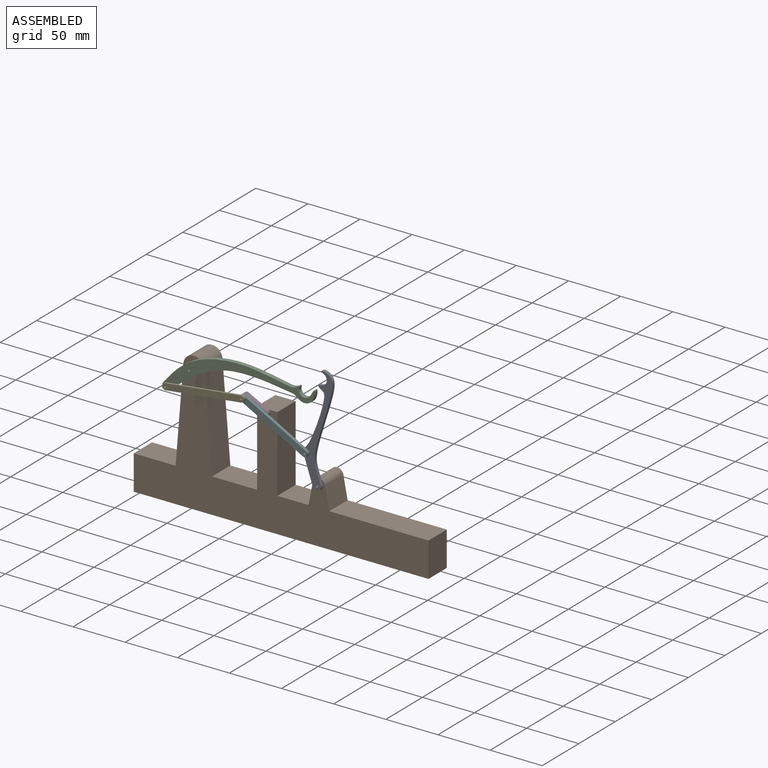
[diagram: assembled view]
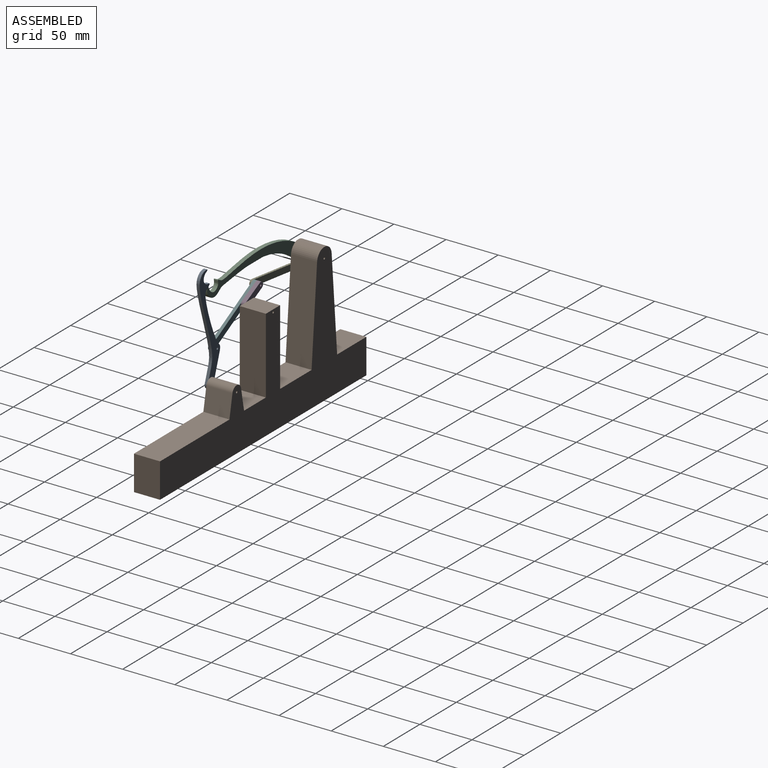
[diagram: assembled view, second angle]
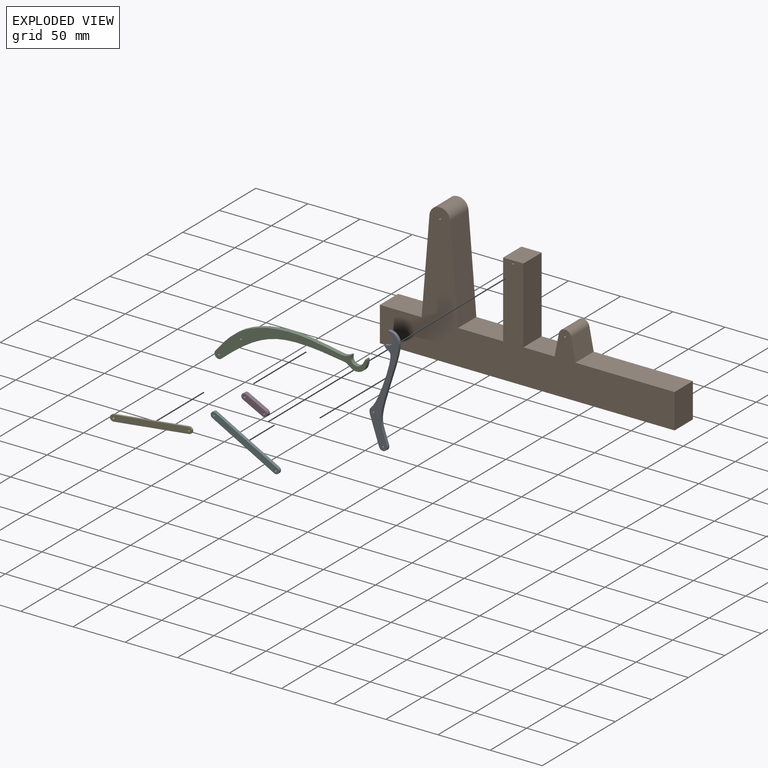
[diagram: exploded view]
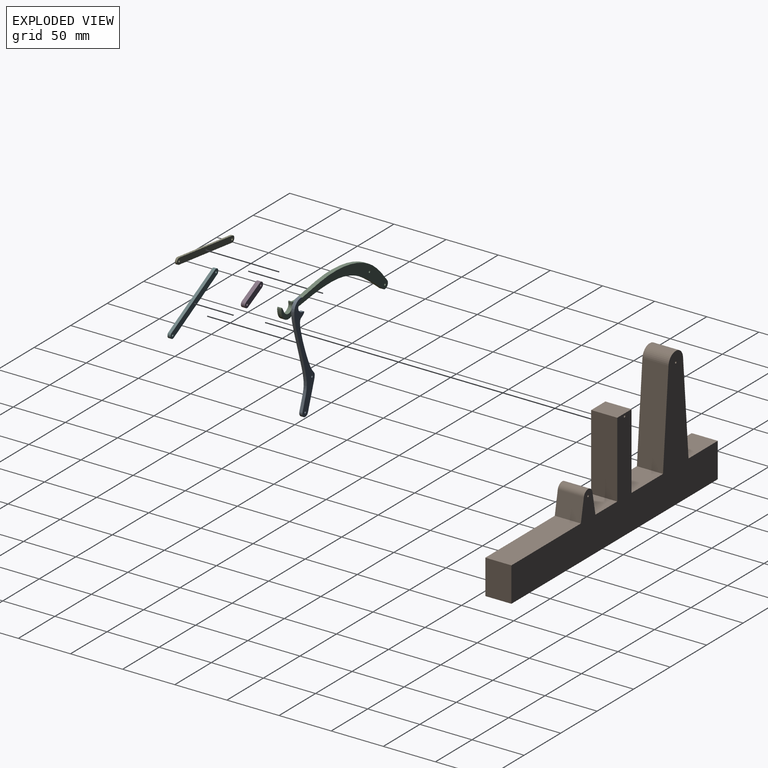
[diagram: exploded view, second angle]
ASSEMBLY  parts=6 mates=8
PART A: 10 faces, bbox 57.2x3x95.2 mm
  f0: extruded ~4.62x3.83mm, area 19.2mm2, adj f1,f5,f6,f7
  f1: extruded ~3x0.92mm, area 2.8mm2, adj f0,f2,f6,f7
  f2: plane 26.92x3mm, normal (-1,0,0.09), area 81.1mm2, adj f1,f3,f6,f7
  f3: cylinder r=4mm len=7.98mm, axis (0,1,0), area 37.7mm2, adj f2,f4,f6,f7
  f4: plane 11.29x3mm, normal (1,0,-0.09), area 34mm2, adj f3,f5,f6,f7
  f5: extruded ~79.34x49.56mm, area 540.9mm2, adj f0,f4,f6,f7
  f6: plane 95.22x57.2mm, normal (0,-1,0), area 743.2mm2, adj f0,f1,f2,f3,f4,f5,f8,f9
  f7: plane 95.22x57.2mm, normal (0,1,0), area 743.2mm2, adj f0,f1,f2,f3,f4,f5,f8,f9
  f8: cylinder r=1mm len=3mm, axis (0,1,0), area 18.8mm2, adj f6,f7
  f9: cylinder r=1mm len=3mm, axis (0,1,0), area 18.8mm2, adj f6,f7
PART B: 23 faces, bbox 282.7x25x133.1 mm
  f0: plane 90.83x25mm, normal (-1,0,0.08), area 2278.5mm2, adj f1,f17,f18,f19
  f1: plane 40.06x25mm, normal (0,0,1), area 1001.5mm2, adj f0,f2,f18,f19
  f2: plane 33.29x25mm, normal (-1,0,0), area 832.2mm2, adj f1,f3,f18,f19
  f3: plane 282.66x25mm, normal (0,0,-1), area 7066.6mm2, adj f2,f4,f18,f19
  f4: plane 33.29x25mm, normal (1,0,0), area 832.2mm2, adj f3,f5,f18,f19
  f5: plane 95.11x25mm, normal (0,0,1), area 2377.6mm2, adj f4,f6,f18,f19
  f6: plane 25x21.15mm, normal (0.98,0,0.19), area 538.5mm2, adj f5,f7,f18,f19
  f7: cylinder r=6mm len=25mm, axis (0,-1,0), area 413.6mm2, adj f6,f8,f18,f19
  f8: plane 25x21.15mm, normal (-0.98,0,0.19), area 538.5mm2, adj f7,f9,f18,f19
  f9: plane 29.87x25mm, normal (0,0,1), area 746.7mm2, adj f8,f10,f18,f19
  f10: plane 72.58x25mm, normal (1,0,0), area 1814.5mm2, adj f9,f11,f18,f19
  f11: plane 25x19.46mm, normal (0,0,1), area 486.5mm2, adj f10,f12,f18,f19
  f12: plane 72.58x25mm, normal (-1,0,0), area 1814.5mm2, adj f11,f13,f18,f19
  f13: plane 43.17x25mm, normal (0,0,1), area 1079.3mm2, adj f12,f14,f18,f19
  f14: plane 90.83x25mm, normal (1,0,0.08), area 2278.5mm2, adj f13,f15,f18,f19
  f15: cylinder r=10mm len=25mm, axis (0,-1,0), area 330mm2, adj f14,f16,f18,f19
  f16: plane 25x3.35mm, normal (0,0,1), area 83.7mm2, adj f15,f17,f18,f19
  f17: cylinder r=10mm len=25mm, axis (0,-1,0), area 330mm2, adj f0,f16,f18,f19
  f18: plane 282.66x133.15mm, normal (0,1,0), area 13825.9mm2, adj f0,f1,f2,f3,f4,f5,f6,f7
  f19: plane 282.66x133.15mm, normal (0,-1,0), area 13825.9mm2, adj f0,f1,f2,f3,f4,f5,f6,f7
  f20: cylinder r=1mm len=25mm, axis (0,-1,0), area 157.1mm2, adj f18,f19
  f21: cylinder r=1mm len=25mm, axis (0,-1,0), area 157.1mm2, adj f18,f19
  f22: cylinder r=1mm len=25mm, axis (0,-1,0), area 157.1mm2, adj f18,f19
PART C: 8 faces, bbox 74.1x4x140.1 mm
  f0: plane 140.13x74.08mm, normal (0,-1,0), area 1243.2mm2, adj f1,f3,f4,f5,f6,f7
  f1: extruded ~4.32x4mm, area 17.3mm2, adj f0,f2,f3,f4
  f2: plane 140.13x74.08mm, normal (0,1,0), area 1243.2mm2, adj f1,f3,f4,f5,f6,f7
  f3: extruded ~134.63x70.54mm, area 1291mm2, adj f0,f1,f2,f5
  f4: cylinder r=4mm len=7.73mm, axis (0,1,0), area 46.6mm2, adj f0,f1,f2,f5
  f5: extruded ~4x0.93mm, area 3.8mm2, adj f0,f2,f3,f4
  f6: cylinder r=1mm len=4mm, axis (0,1,0), area 25.1mm2, adj f0,f2
  f7: cylinder r=1mm len=4mm, axis (0,1,0), area 25.1mm2, adj f0,f2
PART D: 8 faces, bbox 6x4x27 mm
  f0: cylinder r=3mm len=6mm, axis (0,1,0), area 37.7mm2, adj f1,f3,f4,f5
  f1: plane 21x4mm, normal (-1,0,0), area 84mm2, adj f0,f2,f4,f5
  f2: cylinder r=3mm len=6mm, axis (0,1,0), area 37.7mm2, adj f1,f3,f4,f5
  f3: plane 21x4mm, normal (1,0,0), area 84mm2, adj f0,f2,f4,f5
  f4: plane 27x6mm, normal (0,-1,0), area 148mm2, adj f0,f1,f2,f3,f6,f7
  f5: plane 27x6mm, normal (0,1,0), area 148mm2, adj f0,f1,f2,f3,f6,f7
  f6: cylinder r=1mm len=4mm, axis (0,1,0), area 25.1mm2, adj f4,f5
  f7: cylinder r=1mm len=4mm, axis (0,1,0), area 25.1mm2, adj f4,f5
PART E: 8 faces, bbox 72.9x2x35.3 mm
  f0: plane 72.85x35.33mm, normal (0,1,0), area 460mm2, adj f1,f2,f3,f4,f6,f7
  f1: plane 66.85x29.33mm, normal (-0.4,0,0.92), area 146mm2, adj f0,f2,f4,f5
  f2: cylinder r=3mm len=5.75mm, axis (0,1,0), area 18.8mm2, adj f0,f1,f3,f5
  f3: plane 66.85x29.33mm, normal (0.4,0,-0.92), area 146mm2, adj f0,f2,f4,f5
  f4: cylinder r=3mm len=5.75mm, axis (0,1,0), area 18.8mm2, adj f0,f1,f3,f5
  f5: plane 72.85x35.33mm, normal (0,-1,0), area 460mm2, adj f1,f2,f3,f4,f6,f7
  f6: cylinder r=1mm len=2mm, axis (0,1,0), area 12.6mm2, adj f0,f5
  f7: cylinder r=1mm len=2mm, axis (0,1,0), area 12.6mm2, adj f0,f5
PART F: 8 faces, bbox 58.7x3x48.1 mm
  f0: plane 52.74x42.13mm, normal (-0.62,0,-0.78), area 202.5mm2, adj f1,f3,f4,f5
  f1: cylinder r=3mm len=5.34mm, axis (0,-1,0), area 28.3mm2, adj f0,f2,f4,f5
  f2: plane 52.74x42.13mm, normal (0.62,0,0.78), area 202.5mm2, adj f1,f3,f4,f5
  f3: cylinder r=3mm len=5.34mm, axis (0,-1,0), area 28.3mm2, adj f0,f2,f4,f5
  f4: plane 58.74x48.13mm, normal (0,1,0), area 427mm2, adj f0,f1,f2,f3,f6,f7
  f5: plane 58.74x48.13mm, normal (0,-1,0), area 427mm2, adj f0,f1,f2,f3,f6,f7
  f6: cylinder r=1mm len=3mm, axis (0,-1,0), area 18.8mm2, adj f4,f5
  f7: cylinder r=1mm len=3mm, axis (0,-1,0), area 18.8mm2, adj f4,f5
PLACE A rot(axis=(0,-1,0),24.2deg) t=(12.57,24.45,72.89)mm
PLACE B t=(28.65,24.45,97.74)mm fixed
PLACE C rot(axis=(0,1,0),54.4deg) t=(-16.85,21.45,49.18)mm
PLACE D rot(axis=(0,-1,0),63deg) t=(28.65,24.45,97.74)mm
PLACE E rot(axis=(0,1,0),16.9deg) t=(3.84,21.45,87.19)mm
PLACE F rot(axis=(0,-1,0),10.2deg) t=(13.68,17.45,86.62)mm
MATE cylindrical B.f15 <-> C.f7  axis (0,-1,0) through (-41.35,24.45,117.74)mm
MATE parallel A.f6 <-> F.f4  axis (0,-1,0) through (79.79,21.45,92.94)mm
MATE revolute A.f3 <-> B.f7  axis (0,1,0) through (78.65,24.45,47.74)mm
MATE revolute F.f7 <-> D.f0  axis (0,1,0) through (9.95,20.45,107.28)mm
MATE cylindrical A.f8 <-> F.f1  axis (0,1,0) through (69.33,21.45,75.2)mm
MATE revolute D.f2 <-> B.f21  axis (0,1,0) through (28.65,24.45,97.74)mm
MATE revolute E.f7 <-> F.f3  axis (0,1,0) through (9.95,17.45,107.28)mm
MATE revolute E.f2 <-> C.f4  axis (0,1,0) through (-62.54,17.45,98.68)mm
